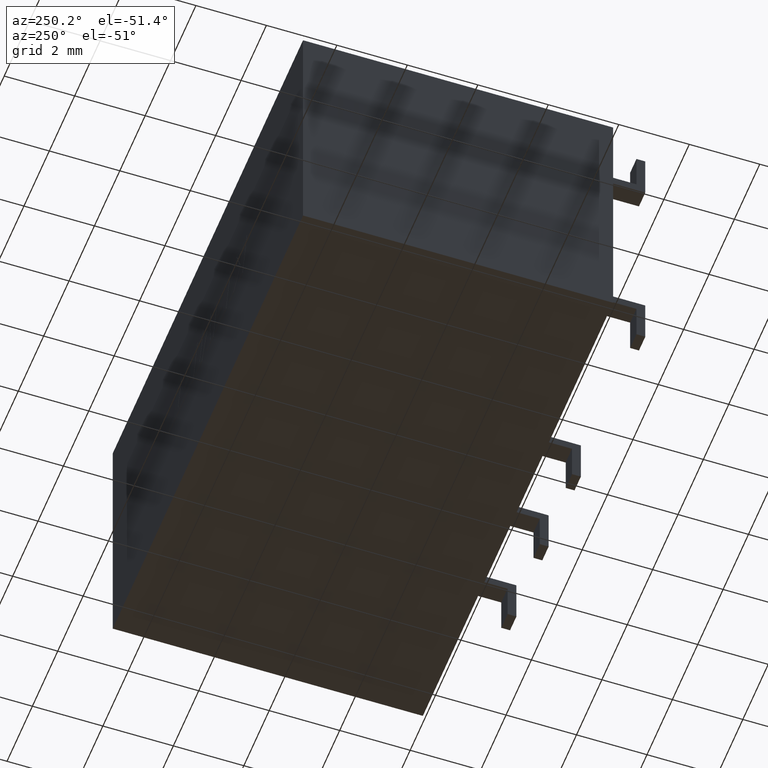
[diagram: clean part render]
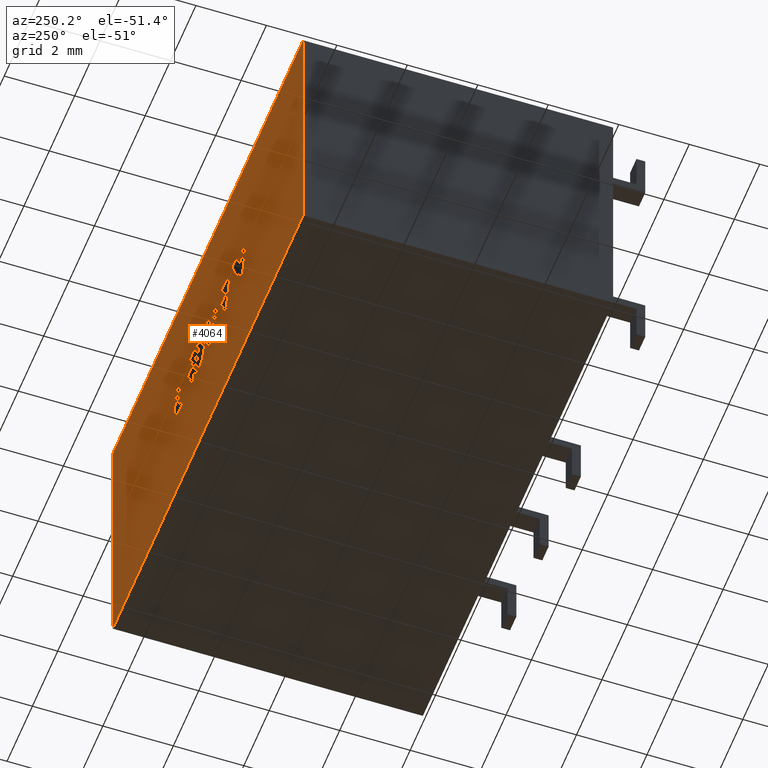
[diagram: same view with one face highlighted and labeled with its STEP entity id]
A machine part, auxiliary view. The second image highlights one B-rep face of the part: STEP entity #4064.
In plain terms, the highlighted planar face has unit normal (0, -1, 0).
Its self-contained STEP definition (entity closure, byte-faithful):
#31 = CARTESIAN_POINT ( 'NONE',  ( 8.706775999651787500, 8.800000000000000700, -3.374613370544447200 ) ) ;
#54 = EDGE_CURVE ( 'NONE', #2065, #4635, #222, .T. ) ;
#72 = DIRECTION ( 'NONE',  ( -1.000000000000000000, 0.0000000000000000000, 0.0000000000000000000 ) ) ;
#78 = EDGE_CURVE ( 'NONE', #1504, #3679, #4218, .T. ) ;
#86 = EDGE_CURVE ( 'NONE', #2978, #4818, #940, .T. ) ;
#91 = DIRECTION ( 'NONE',  ( -0.4443210308329211300, 0.0000000000000000000, 0.8958676361826953800 ) ) ;
#104 = LINE ( 'NONE', #4430, #2417 ) ;
#134 = CARTESIAN_POINT ( 'NONE',  ( 7.968587361191565900, 8.800000000000000700, -4.354115567484885900 ) ) ;
#148 = DIRECTION ( 'NONE',  ( -1.000000000000000000, -0.0000000000000000000, -0.0000000000000000000 ) ) ;
#157 = CARTESIAN_POINT ( 'NONE',  ( 15.00000000000000000, 8.800000000000000700, 0.0000000000000000000 ) ) ;
#162 = VECTOR ( 'NONE', #2710, 1000.000000000000100 ) ;
#163 = LINE ( 'NONE', #2256, #4781 ) ;
#165 = ORIENTED_EDGE ( 'NONE', *, *, #342, .F. ) ;
#188 = VERTEX_POINT ( 'NONE', #568 ) ;
#208 = ORIENTED_EDGE ( 'NONE', *, *, #1605, .F. ) ;
#215 = EDGE_CURVE ( 'NONE', #4818, #2629, #3316, .T. ) ;
#222 = LINE ( 'NONE', #31, #3178 ) ;
#226 = CARTESIAN_POINT ( 'NONE',  ( 7.539963216365854300, 8.800000000000000700, -3.489896966992324800 ) ) ;
#230 = LINE ( 'NONE', #1041, #3629 ) ;
#239 = CARTESIAN_POINT ( 'NONE',  ( 6.789761832349113600, 8.800000000000000700, -3.374569232258529000 ) ) ;
#249 = LINE ( 'NONE', #5139, #2312 ) ;
#269 = CARTESIAN_POINT ( 'NONE',  ( 0.0000000000000000000, 8.800000000000000700, 0.0000000000000000000 ) ) ;
#276 = CARTESIAN_POINT ( 'NONE',  ( 10.58682435184509500, 8.800000000000000700, -4.354115567484885900 ) ) ;
#280 = LINE ( 'NONE', #3900, #5080 ) ;
#293 = VERTEX_POINT ( 'NONE', #630 ) ;
#322 = ORIENTED_EDGE ( 'NONE', *, *, #1684, .F. ) ;
#342 = EDGE_CURVE ( 'NONE', #3692, #1717, #4514, .T. ) ;
#352 = ORIENTED_EDGE ( 'NONE', *, *, #894, .T. ) ;
#358 = EDGE_CURVE ( 'NONE', #1857, #1504, #2922, .T. ) ;
#359 = LINE ( 'NONE', #3581, #549 ) ;
#365 = VERTEX_POINT ( 'NONE', #5180 ) ;
#372 = VECTOR ( 'NONE', #5243, 1000.000000000000200 ) ;
#377 = VECTOR ( 'NONE', #3416, 1000.000000000000000 ) ;
#394 = CARTESIAN_POINT ( 'NONE',  ( 7.968587361191565900, 8.800000000000000700, -4.354115567484885900 ) ) ;
#430 = CARTESIAN_POINT ( 'NONE',  ( 4.753940212673325200, 8.800000000000000700, -3.144424836978810100 ) ) ;
#463 = ORIENTED_EDGE ( 'NONE', *, *, #1285, .T. ) ;
#471 = EDGE_CURVE ( 'NONE', #652, #4143, #5155, .T. ) ;
#481 = CARTESIAN_POINT ( 'NONE',  ( 9.843976946841056700, 8.800000000000000700, -4.120546776616391700 ) ) ;
#484 = ORIENTED_EDGE ( 'NONE', *, *, #54, .F. ) ;
#490 = VECTOR ( 'NONE', #1070, 1000.000000000000200 ) ;
#503 = LINE ( 'NONE', #1229, #4908 ) ;
#542 = VECTOR ( 'NONE', #2412, 1000.000000000000000 ) ;
#543 = VERTEX_POINT ( 'NONE', #4948 ) ;
#549 = VECTOR ( 'NONE', #4392, 1000.000000000000000 ) ;
#551 = DIRECTION ( 'NONE',  ( -0.05596501978068186400, 0.0000000000000000000, 0.9984327301130245800 ) ) ;
#568 = CARTESIAN_POINT ( 'NONE',  ( 9.476216722813125800, 8.800000000000000700, -4.122257135315609700 ) ) ;
#580 = DIRECTION ( 'NONE',  ( 0.2762437428917413600, 0.0000000000000000000, -0.9610876102172796200 ) ) ;
#592 = CARTESIAN_POINT ( 'NONE',  ( 8.644886763050072500, 8.800000000000000700, -4.354115567484885900 ) ) ;
#606 = LINE ( 'NONE', #4329, #4391 ) ;
#614 = DIRECTION ( 'NONE',  ( -1.000000000000000000, 0.0000000000000000000, 0.0000000000000000000 ) ) ;
#626 = DIRECTION ( 'NONE',  ( -0.3829140317376945600, -0.0000000000000000000, -0.9237839814038689700 ) ) ;
#630 = CARTESIAN_POINT ( 'NONE',  ( 9.276211422546655400, 8.800000000000000700, -3.374613370544447200 ) ) ;
#638 = CARTESIAN_POINT ( 'NONE',  ( 4.757603691632335900, 8.800000000000000700, -4.354115567484885900 ) ) ;
#640 = CARTESIAN_POINT ( 'NONE',  ( 7.260949101134790400, 8.800000000000000700, -3.144424836978810600 ) ) ;
#646 = CARTESIAN_POINT ( 'NONE',  ( 4.753940212673325200, 8.800000000000000700, -3.144424836978809700 ) ) ;
#652 = VERTEX_POINT ( 'NONE', #481 ) ;
#661 = CARTESIAN_POINT ( 'NONE',  ( 9.311654468621700400, 8.800000000000000700, -3.675224544226234300 ) ) ;
#707 = CARTESIAN_POINT ( 'NONE',  ( 8.154708993482012500, 8.800000000000000700, -4.226566946818449500 ) ) ;
#709 = VERTEX_POINT ( 'NONE', #592 ) ;
#715 = LINE ( 'NONE', #3590, #4617 ) ;
#732 = VECTOR ( 'NONE', #4473, 1000.000000000000100 ) ;
#734 = EDGE_CURVE ( 'NONE', #2180, #2030, #280, .T. ) ;
#751 = ORIENTED_EDGE ( 'NONE', *, *, #3725, .F. ) ;
#758 = DIRECTION ( 'NONE',  ( -1.000000000000000000, 0.0000000000000000000, 0.0000000000000000000 ) ) ;
#761 = VECTOR ( 'NONE', #4366, 1000.000000000000200 ) ;
#763 = LINE ( 'NONE', #5149, #4988 ) ;
#775 = EDGE_CURVE ( 'NONE', #3550, #3530, #799, .T. ) ;
#781 = CARTESIAN_POINT ( 'NONE',  ( 6.796768784764758200, 8.800000000000000700, -3.144424836978810600 ) ) ;
#789 = DIRECTION ( 'NONE',  ( 1.000000000000000000, -0.0000000000000000000, -0.0000000000000000000 ) ) ;
#791 = CARTESIAN_POINT ( 'NONE',  ( 8.921869238377524900, 8.800000000000000700, -4.123816688194352800 ) ) ;
#794 = CARTESIAN_POINT ( 'NONE',  ( 9.563330992554629300, 8.800000000000000700, -3.144424836978810600 ) ) ;
#799 = LINE ( 'NONE', #3031, #930 ) ;
#824 = ORIENTED_EDGE ( 'NONE', *, *, #4508, .T. ) ;
#834 = FACE_BOUND ( 'NONE', #4362, .T. ) ;
#854 = EDGE_CURVE ( 'NONE', #3530, #4114, #230, .T. ) ;
#879 = VECTOR ( 'NONE', #3812, 1000.000000000000000 ) ;
#892 = VECTOR ( 'NONE', #2695, 1000.000000000000200 ) ;
#894 = EDGE_CURVE ( 'NONE', #1311, #1740, #3308, .T. ) ;
#895 = VECTOR ( 'NONE', #4056, 1000.000000000000000 ) ;
#906 = ORIENTED_EDGE ( 'NONE', *, *, #734, .F. ) ;
#914 = DIRECTION ( 'NONE',  ( -1.000000000000000000, 0.0000000000000000000, 0.0000000000000000000 ) ) ;
#916 = EDGE_CURVE ( 'NONE', #3044, #4755, #104, .T. ) ;
#928 = EDGE_LOOP ( 'NONE', ( #2958, #4697, #2157, #2742, #3428, #3357, #2979, #3612, #1712, #4661, #906, #4893, #1176, #1687, #5311, #3471, #1704, #3133, #165, #3033, #751, #2159, #4827 ) ) ;
#929 = ORIENTED_EDGE ( 'NONE', *, *, #4367, .F. ) ;
#930 = VECTOR ( 'NONE', #1026, 1000.000000000000100 ) ;
#940 = LINE ( 'NONE', #4548, #1775 ) ;
#942 = CARTESIAN_POINT ( 'NONE',  ( 9.375529929200253000, 8.800000000000000700, -3.898814403586195800 ) ) ;
#957 = EDGE_CURVE ( 'NONE', #1445, #1381, #359, .T. ) ;
#971 = CARTESIAN_POINT ( 'NONE',  ( 6.723981068963766500, 8.800000000000000700, -3.675224544228749200 ) ) ;
#993 = CARTESIAN_POINT ( 'NONE',  ( 6.268643123160173600, 8.800000000000000700, -3.898854863686458400 ) ) ;
#1006 = EDGE_CURVE ( 'NONE', #2667, #3003, #1588, .T. ) ;
#1026 = DIRECTION ( 'NONE',  ( 0.7145695586381790600, -0.0000000000000000000, -0.6995643972270443300 ) ) ;
#1036 = DIRECTION ( 'NONE',  ( 0.0000000000000000000, 0.0000000000000000000, -1.000000000000000000 ) ) ;
#1041 = CARTESIAN_POINT ( 'NONE',  ( 5.468281639358347800, 8.800000000000000700, -4.354115567484885900 ) ) ;
#1044 = EDGE_CURVE ( 'NONE', #4635, #5107, #2807, .T. ) ;
#1057 = LINE ( 'NONE', #1312, #1584 ) ;
#1059 = LINE ( 'NONE', #3456, #3682 ) ;
#1069 = LINE ( 'NONE', #2386, #4602 ) ;
#1070 = DIRECTION ( 'NONE',  ( 0.9999999968487352000, 0.0000000000000000000, 7.938847109812788100E-005 ) ) ;
#1081 = EDGE_CURVE ( 'NONE', #3585, #3692, #1057, .T. ) ;
#1089 = EDGE_CURVE ( 'NONE', #4631, #3044, #2160, .T. ) ;
#1092 = VECTOR ( 'NONE', #1918, 1000.000000000000100 ) ;
#1115 = EDGE_CURVE ( 'NONE', #365, #3010, #1250, .T. ) ;
#1120 = CARTESIAN_POINT ( 'NONE',  ( 6.056981636408125700, 8.800000000000000700, -4.354115567484885900 ) ) ;
#1122 = VECTOR ( 'NONE', #3798, 1000.000000000000000 ) ;
#1151 = VECTOR ( 'NONE', #1169, 1000.000000000000000 ) ;
#1152 = CARTESIAN_POINT ( 'NONE',  ( 7.539963216365854300, 8.800000000000000700, -3.489896966992324800 ) ) ;
#1169 = DIRECTION ( 'NONE',  ( 0.2793947940878231400, 0.0000000000000000000, -0.9601763114327612800 ) ) ;
#1175 = CARTESIAN_POINT ( 'NONE',  ( 9.907925971234515600, 8.800000000000000700, -3.144424836978811000 ) ) ;
#1176 = ORIENTED_EDGE ( 'NONE', *, *, #3515, .F. ) ;
#1178 = VERTEX_POINT ( 'NONE', #646 ) ;
#1187 = EDGE_CURVE ( 'NONE', #4181, #2458, #606, .T. ) ;
#1188 = CARTESIAN_POINT ( 'NONE',  ( 6.334114918525966900, 8.800000000000000700, -4.123857148293979000 ) ) ;
#1192 = LINE ( 'NONE', #134, #2860 ) ;
#1218 = ORIENTED_EDGE ( 'NONE', *, *, #4843, .F. ) ;
#1229 = CARTESIAN_POINT ( 'NONE',  ( 9.476216722813125800, 8.800000000000000700, -4.122257135315608800 ) ) ;
#1232 = CARTESIAN_POINT ( 'NONE',  ( 8.296937273434075200, 8.800000000000000700, -3.144424836978810600 ) ) ;
#1250 = LINE ( 'NONE', #2581, #1122 ) ;
#1285 = EDGE_CURVE ( 'NONE', #1740, #4438, #2570, .T. ) ;
#1286 = ORIENTED_EDGE ( 'NONE', *, *, #358, .F. ) ;
#1290 = VECTOR ( 'NONE', #2802, 1000.000000000000000 ) ;
#1301 = CARTESIAN_POINT ( 'NONE',  ( 8.499149488150258900, 8.800000000000000700, -4.354115567484885900 ) ) ;
#1311 = VERTEX_POINT ( 'NONE', #5241 ) ;
#1312 = CARTESIAN_POINT ( 'NONE',  ( 7.071319977948303600, 8.800000000000000700, -4.354115567484885900 ) ) ;
#1324 = DIRECTION ( 'NONE',  ( 0.2762033010287853200, 0.0000000000000000000, -0.9610992334305559200 ) ) ;
#1332 = CARTESIAN_POINT ( 'NONE',  ( 5.102044186300700400, 8.800000000000000700, -4.354115567484885900 ) ) ;
#1346 = FACE_BOUND ( 'NONE', #928, .T. ) ;
#1365 = ORIENTED_EDGE ( 'NONE', *, *, #4488, .F. ) ;
#1381 = VERTEX_POINT ( 'NONE', #394 ) ;
#1445 = VERTEX_POINT ( 'NONE', #1301 ) ;
#1467 = CARTESIAN_POINT ( 'NONE',  ( 7.586484462749385900, 8.800000000000000700, -4.354115567484885900 ) ) ;
#1496 = EDGE_CURVE ( 'NONE', #2546, #5068, #2139, .T. ) ;
#1504 = VERTEX_POINT ( 'NONE', #2518 ) ;
#1510 = ORIENTED_EDGE ( 'NONE', *, *, #3029, .F. ) ;
#1537 = CARTESIAN_POINT ( 'NONE',  ( 6.885262377007999000, 8.800000000000000700, -4.123857148293979000 ) ) ;
#1561 = CARTESIAN_POINT ( 'NONE',  ( 8.706775999651787500, 8.800000000000000700, -3.374613370544446800 ) ) ;
#1572 = DIRECTION ( 'NONE',  ( -0.0000000000000000000, -0.0000000000000000000, 1.000000000000000000 ) ) ;
#1584 = VECTOR ( 'NONE', #4611, 999.9999999999998900 ) ;
#1588 = LINE ( 'NONE', #4045, #4221 ) ;
#1605 = EDGE_CURVE ( 'NONE', #4823, #1857, #1746, .T. ) ;
#1667 = VECTOR ( 'NONE', #4092, 1000.000000000000000 ) ;
#1684 = EDGE_CURVE ( 'NONE', #4143, #4823, #249, .T. ) ;
#1687 = ORIENTED_EDGE ( 'NONE', *, *, #5303, .F. ) ;
#1690 = CARTESIAN_POINT ( 'NONE',  ( 6.119176163806897300, 8.800000000000000700, -3.374569232258529000 ) ) ;
#1702 = CARTESIAN_POINT ( 'NONE',  ( 4.954173561733970400, 8.800000000000000700, -3.838256671071306000 ) ) ;
#1704 = ORIENTED_EDGE ( 'NONE', *, *, #4414, .F. ) ;
#1712 = ORIENTED_EDGE ( 'NONE', *, *, #4118, .F. ) ;
#1717 = VERTEX_POINT ( 'NONE', #3952 ) ;
#1740 = VERTEX_POINT ( 'NONE', #269 ) ;
#1741 = VECTOR ( 'NONE', #4979, 1000.000000000000200 ) ;
#1743 = EDGE_CURVE ( 'NONE', #5107, #4631, #3018, .T. ) ;
#1746 = LINE ( 'NONE', #5018, #4736 ) ;
#1756 = VERTEX_POINT ( 'NONE', #707 ) ;
#1775 = VECTOR ( 'NONE', #2562, 999.9999999999998900 ) ;
#1784 = CARTESIAN_POINT ( 'NONE',  ( 8.921869238377524900, 8.800000000000000700, -4.123816688194352800 ) ) ;
#1787 = LINE ( 'NONE', #2259, #372 ) ;
#1799 = ORIENTED_EDGE ( 'NONE', *, *, #854, .F. ) ;
#1801 = VECTOR ( 'NONE', #4169, 1000.000000000000000 ) ;
#1814 = CARTESIAN_POINT ( 'NONE',  ( 7.071319977948303600, 8.800000000000000700, -4.354115567484885000 ) ) ;
#1826 = CARTESIAN_POINT ( 'NONE',  ( 6.056981636408124800, 8.800000000000000700, -4.354115567484885000 ) ) ;
#1857 = VERTEX_POINT ( 'NONE', #4446 ) ;
#1866 = CARTESIAN_POINT ( 'NONE',  ( 9.210894111194017200, 8.800000000000000700, -3.144424836978810600 ) ) ;
#1872 = DIRECTION ( 'NONE',  ( -0.2764273280489753000, 0.0000000000000000000, 0.9610348236706639500 ) ) ;
#1877 = DIRECTION ( 'NONE',  ( -1.000000000000000000, -0.0000000000000000000, -0.0000000000000000000 ) ) ;
#1907 = VECTOR ( 'NONE', #4162, 1000.000000000000000 ) ;
#1918 = DIRECTION ( 'NONE',  ( 0.2746918797667299300, 0.0000000000000000000, -0.9615323037684279100 ) ) ;
#1937 = VERTEX_POINT ( 'NONE', #1702 ) ;
#1970 = VERTEX_POINT ( 'NONE', #4539 ) ;
#1989 = VERTEX_POINT ( 'NONE', #4945 ) ;
#2016 = CARTESIAN_POINT ( 'NONE',  ( 8.151354483517396300, 8.800000000000000700, -3.144424836978810600 ) ) ;
#2030 = VERTEX_POINT ( 'NONE', #1826 ) ;
#2052 = ORIENTED_EDGE ( 'NONE', *, *, #471, .F. ) ;
#2054 = CARTESIAN_POINT ( 'NONE',  ( 7.843953369709644200, 8.800000000000000700, -3.144424836978810600 ) ) ;
#2059 = EDGE_CURVE ( 'NONE', #2030, #3101, #4705, .T. ) ;
#2065 = VERTEX_POINT ( 'NONE', #1561 ) ;
#2139 = LINE ( 'NONE', #4563, #2444 ) ;
#2155 = CARTESIAN_POINT ( 'NONE',  ( 10.51969316372213300, 8.800000000000000700, -4.120520482980314400 ) ) ;
#2157 = ORIENTED_EDGE ( 'NONE', *, *, #3604, .F. ) ;
#2159 = ORIENTED_EDGE ( 'NONE', *, *, #4549, .F. ) ;
#2160 = LINE ( 'NONE', #942, #2538 ) ;
#2180 = VERTEX_POINT ( 'NONE', #4453 ) ;
#2183 = EDGE_CURVE ( 'NONE', #3317, #1445, #2681, .T. ) ;
#2185 = VECTOR ( 'NONE', #3248, 1000.000000000000000 ) ;
#2197 = EDGE_CURVE ( 'NONE', #1970, #1178, #2819, .T. ) ;
#2240 = FACE_BOUND ( 'NONE', #3335, .T. ) ;
#2256 = CARTESIAN_POINT ( 'NONE',  ( 7.843953369709644200, 8.800000000000000700, -3.144424836978810600 ) ) ;
#2259 = CARTESIAN_POINT ( 'NONE',  ( 6.723981068963766500, 8.800000000000000700, -3.675224544228749700 ) ) ;
#2271 = VERTEX_POINT ( 'NONE', #2054 ) ;
#2279 = ORIENTED_EDGE ( 'NONE', *, *, #3825, .F. ) ;
#2282 = CARTESIAN_POINT ( 'NONE',  ( 8.154708993482012500, 8.800000000000000700, -4.226566946818449500 ) ) ;
#2293 = EDGE_CURVE ( 'NONE', #3003, #2435, #2675, .T. ) ;
#2312 = VECTOR ( 'NONE', #4340, 1000.000000000000000 ) ;
#2335 = ORIENTED_EDGE ( 'NONE', *, *, #2832, .F. ) ;
#2337 = CARTESIAN_POINT ( 'NONE',  ( 0.0000000000000000000, 8.800000000000000700, 0.0000000000000000000 ) ) ;
#2354 = CARTESIAN_POINT ( 'NONE',  ( 4.409959492820113300, 8.800000000000000700, -3.144424836978810100 ) ) ;
#2361 = LINE ( 'NONE', #1537, #892 ) ;
#2378 = CARTESIAN_POINT ( 'NONE',  ( 6.787856529543725000, 8.800000000000000700, -3.898854863686458800 ) ) ;
#2384 = VECTOR ( 'NONE', #4344, 1000.000000000000100 ) ;
#2386 = CARTESIAN_POINT ( 'NONE',  ( 9.542909678477567300, 8.800000000000000700, -4.354115567484885900 ) ) ;
#2388 = VECTOR ( 'NONE', #148, 1000.000000000000000 ) ;
#2412 = DIRECTION ( 'NONE',  ( -0.7059037656364862700, -0.0000000000000000000, 0.7083077534943611500 ) ) ;
#2417 = VECTOR ( 'NONE', #3653, 1000.000000000000200 ) ;
#2435 = VERTEX_POINT ( 'NONE', #2682 ) ;
#2444 = VECTOR ( 'NONE', #914, 1000.000000000000000 ) ;
#2456 = EDGE_CURVE ( 'NONE', #2435, #3550, #1059, .T. ) ;
#2458 = VERTEX_POINT ( 'NONE', #1866 ) ;
#2518 = CARTESIAN_POINT ( 'NONE',  ( 10.51969316372213300, 8.800000000000000700, -4.120520482980314400 ) ) ;
#2525 = EDGE_CURVE ( 'NONE', #4114, #1937, #3807, .T. ) ;
#2537 = ORIENTED_EDGE ( 'NONE', *, *, #1115, .F. ) ;
#2538 = VECTOR ( 'NONE', #72, 1000.000000000000000 ) ;
#2546 = VERTEX_POINT ( 'NONE', #2378 ) ;
#2560 = LINE ( 'NONE', #781, #2185 ) ;
#2562 = DIRECTION ( 'NONE',  ( 0.2759782365590802700, 0.0000000000000000000, -0.9611638845408937400 ) ) ;
#2565 = DIRECTION ( 'NONE',  ( 0.2755520632520555600, -0.0000000000000000000, -0.9612861490927324700 ) ) ;
#2570 = LINE ( 'NONE', #3216, #1290 ) ;
#2581 = CARTESIAN_POINT ( 'NONE',  ( 4.757603691632335900, 8.800000000000000700, -4.354115567484885900 ) ) ;
#2622 = CARTESIAN_POINT ( 'NONE',  ( 7.583441831593136200, 8.800000000000000700, -3.144424836978810100 ) ) ;
#2623 = VECTOR ( 'NONE', #3030, 1000.000000000000000 ) ;
#2629 = VERTEX_POINT ( 'NONE', #2794 ) ;
#2635 = CARTESIAN_POINT ( 'NONE',  ( 5.205850084698665700, 8.800000000000000700, -3.144424836978810100 ) ) ;
#2645 = EDGE_LOOP ( 'NONE', ( #352, #463, #824, #3421 ) ) ;
#2667 = VERTEX_POINT ( 'NONE', #4067 ) ;
#2668 = DIRECTION ( 'NONE',  ( 0.05375259206908399000, 0.0000000000000000000, -0.9985542843760947300 ) ) ;
#2675 = LINE ( 'NONE', #3231, #4406 ) ;
#2681 = LINE ( 'NONE', #2016, #895 ) ;
#2682 = CARTESIAN_POINT ( 'NONE',  ( 5.573919276750199700, 8.800000000000000700, -3.144424836978810100 ) ) ;
#2691 = CARTESIAN_POINT ( 'NONE',  ( 5.301659597375603100, 8.800000000000000700, -3.801254072112965500 ) ) ;
#2695 = DIRECTION ( 'NONE',  ( 0.2732148821745930000, 0.0000000000000000000, -0.9619530280415583600 ) ) ;
#2701 = CARTESIAN_POINT ( 'NONE',  ( 10.18849100532379900, 8.800000000000000700, -4.120546776613377200 ) ) ;
#2708 = EDGE_CURVE ( 'NONE', #1717, #543, #5206, .T. ) ;
#2710 = DIRECTION ( 'NONE',  ( -0.2762033010252007400, -0.0000000000000000000, 0.9610992334315861000 ) ) ;
#2742 = ORIENTED_EDGE ( 'NONE', *, *, #3132, .F. ) ;
#2751 = VERTEX_POINT ( 'NONE', #1188 ) ;
#2787 = CARTESIAN_POINT ( 'NONE',  ( 9.375529929200253000, 8.800000000000000700, -3.898814403586195800 ) ) ;
#2794 = CARTESIAN_POINT ( 'NONE',  ( 7.260949101134790400, 8.800000000000000700, -3.144424836978810600 ) ) ;
#2801 = ORIENTED_EDGE ( 'NONE', *, *, #1006, .F. ) ;
#2802 = DIRECTION ( 'NONE',  ( 1.000000000000000000, 0.0000000000000000000, 0.0000000000000000000 ) ) ;
#2807 = LINE ( 'NONE', #2859, #4835 ) ;
#2814 = CARTESIAN_POINT ( 'NONE',  ( 4.954173561733969500, 8.800000000000000700, -3.838256671071306000 ) ) ;
#2819 = LINE ( 'NONE', #430, #1667 ) ;
#2822 = VECTOR ( 'NONE', #5076, 999.9999999999998900 ) ;
#2832 = EDGE_CURVE ( 'NONE', #293, #2065, #4334, .T. ) ;
#2859 = CARTESIAN_POINT ( 'NONE',  ( 8.792595546249630800, 8.800000000000000700, -3.675224544226234300 ) ) ;
#2860 = VECTOR ( 'NONE', #91, 1000.000000000000200 ) ;
#2875 = ORIENTED_EDGE ( 'NONE', *, *, #2293, .F. ) ;
#2876 = EDGE_CURVE ( 'NONE', #1381, #5312, #1192, .T. ) ;
#2881 = VECTOR ( 'NONE', #1036, 1000.000000000000000 ) ;
#2889 = CARTESIAN_POINT ( 'NONE',  ( 9.210894111194017200, 8.800000000000000700, -3.144424836978811000 ) ) ;
#2921 = ORIENTED_EDGE ( 'NONE', *, *, #916, .F. ) ;
#2922 = LINE ( 'NONE', #2701, #490 ) ;
#2945 = DIRECTION ( 'NONE',  ( 0.2745159998572672700, 0.0000000000000000000, -0.9615825319869141200 ) ) ;
#2958 = ORIENTED_EDGE ( 'NONE', *, *, #957, .F. ) ;
#2978 = VERTEX_POINT ( 'NONE', #4689 ) ;
#2979 = ORIENTED_EDGE ( 'NONE', *, *, #215, .F. ) ;
#2999 = CARTESIAN_POINT ( 'NONE',  ( 6.204841226395180000, 8.800000000000000700, -3.675224544228749700 ) ) ;
#3003 = VERTEX_POINT ( 'NONE', #2635 ) ;
#3010 = VERTEX_POINT ( 'NONE', #638 ) ;
#3018 = LINE ( 'NONE', #661, #1092 ) ;
#3029 = EDGE_CURVE ( 'NONE', #3010, #1970, #3427, .T. ) ;
#3030 = DIRECTION ( 'NONE',  ( 1.000000000000000000, 0.0000000000000000000, 0.0000000000000000000 ) ) ;
#3031 = CARTESIAN_POINT ( 'NONE',  ( 5.866379580699370600, 8.800000000000000700, -4.354115567484885900 ) ) ;
#3033 = ORIENTED_EDGE ( 'NONE', *, *, #1081, .F. ) ;
#3037 = CARTESIAN_POINT ( 'NONE',  ( 7.321315567737342700, 8.800000000000000700, -4.221380697862242600 ) ) ;
#3044 = VERTEX_POINT ( 'NONE', #3091 ) ;
#3045 = ORIENTED_EDGE ( 'NONE', *, *, #3799, .F. ) ;
#3058 = CARTESIAN_POINT ( 'NONE',  ( 9.311654468621700400, 8.800000000000000700, -3.675224544226234300 ) ) ;
#3084 = CARTESIAN_POINT ( 'NONE',  ( 7.583441831593136200, 8.800000000000000700, -3.144424836978810600 ) ) ;
#3091 = CARTESIAN_POINT ( 'NONE',  ( 8.856397443013156200, 8.800000000000000700, -3.898814403586194900 ) ) ;
#3093 = EDGE_CURVE ( 'NONE', #1989, #2180, #2361, .T. ) ;
#3101 = VERTEX_POINT ( 'NONE', #3117 ) ;
#3113 = LINE ( 'NONE', #4621, #879 ) ;
#3117 = CARTESIAN_POINT ( 'NONE',  ( 5.708881340971506000, 8.800000000000000700, -3.144424836978810600 ) ) ;
#3121 = ORIENTED_EDGE ( 'NONE', *, *, #4741, .F. ) ;
#3126 = VECTOR ( 'NONE', #2668, 1000.000000000000000 ) ;
#3127 = DIRECTION ( 'NONE',  ( 1.000000000000000000, 0.0000000000000000000, -4.745091355267168600E-016 ) ) ;
#3132 = EDGE_CURVE ( 'NONE', #1756, #2271, #4918, .T. ) ;
#3133 = ORIENTED_EDGE ( 'NONE', *, *, #2708, .F. ) ;
#3172 = DIRECTION ( 'NONE',  ( 0.0000000000000000000, -1.000000000000000000, 0.0000000000000000000 ) ) ;
#3178 = VECTOR ( 'NONE', #2945, 1000.000000000000100 ) ;
#3177 = AXIS2_PLACEMENT_3D ( 'NONE', #2337, #3172, #5193 ) ;
#3192 = PLANE ( 'NONE',  #3177 ) ;
#3212 = CARTESIAN_POINT ( 'NONE',  ( 6.268643123160173600, 8.800000000000000700, -3.898854863686458800 ) ) ;
#3216 = CARTESIAN_POINT ( 'NONE',  ( 0.0000000000000000000, 8.800000000000000700, 0.0000000000000000000 ) ) ;
#3231 = CARTESIAN_POINT ( 'NONE',  ( 5.573919276750198800, 8.800000000000000700, -3.144424836978810100 ) ) ;
#3240 = VECTOR ( 'NONE', #1324, 1000.000000000000100 ) ;
#3248 = DIRECTION ( 'NONE',  ( 1.000000000000000000, 0.0000000000000000000, 0.0000000000000000000 ) ) ;
#3249 = ORIENTED_EDGE ( 'NONE', *, *, #4513, .F. ) ;
#3259 = CARTESIAN_POINT ( 'NONE',  ( 7.321315567737343600, 8.800000000000000700, -4.221380697862242600 ) ) ;
#3308 = LINE ( 'NONE', #3613, #4096 ) ;
#3313 = CARTESIAN_POINT ( 'NONE',  ( 4.942201049871806100, 8.800000000000000700, -3.801254072112956200 ) ) ;
#3316 = LINE ( 'NONE', #3037, #4336 ) ;
#3317 = VERTEX_POINT ( 'NONE', #3334 ) ;
#3334 = CARTESIAN_POINT ( 'NONE',  ( 8.151354483517396300, 8.800000000000000700, -3.144424836978810600 ) ) ;
#3335 = EDGE_LOOP ( 'NONE', ( #1510, #2537, #1365, #3527, #1799, #4857, #4521, #2875, #2801, #3045, #3452 ) ) ;
#3339 = ORIENTED_EDGE ( 'NONE', *, *, #1044, .F. ) ;
#3356 = CARTESIAN_POINT ( 'NONE',  ( 9.276211422546655400, 8.800000000000000700, -3.374613370544447200 ) ) ;
#3357 = ORIENTED_EDGE ( 'NONE', *, *, #3974, .F. ) ;
#3416 = DIRECTION ( 'NONE',  ( 1.000000000000000000, 0.0000000000000000000, 0.0000000000000000000 ) ) ;
#3420 = VECTOR ( 'NONE', #614, 1000.000000000000000 ) ;
#3421 = ORIENTED_EDGE ( 'NONE', *, *, #5050, .T. ) ;
#3427 = LINE ( 'NONE', #2354, #162 ) ;
#3428 = ORIENTED_EDGE ( 'NONE', *, *, #5159, .F. ) ;
#3452 = ORIENTED_EDGE ( 'NONE', *, *, #2197, .F. ) ;
#3455 = DIRECTION ( 'NONE',  ( -1.000000000000000000, 0.0000000000000000000, 0.0000000000000000000 ) ) ;
#3456 = CARTESIAN_POINT ( 'NONE',  ( 5.301659597375603100, 8.800000000000000700, -3.801254072112964600 ) ) ;
#3458 = CARTESIAN_POINT ( 'NONE',  ( 0.0000000000000000000, 8.800000000000000700, -7.500000000000000000 ) ) ;
#3471 = ORIENTED_EDGE ( 'NONE', *, *, #4591, .F. ) ;
#3486 = VERTEX_POINT ( 'NONE', #4240 ) ;
#3515 = EDGE_CURVE ( 'NONE', #2751, #1989, #3113, .T. ) ;
#3527 = ORIENTED_EDGE ( 'NONE', *, *, #2525, .F. ) ;
#3530 = VERTEX_POINT ( 'NONE', #4287 ) ;
#3550 = VERTEX_POINT ( 'NONE', #2691 ) ;
#3581 = CARTESIAN_POINT ( 'NONE',  ( 8.499149488150258900, 8.800000000000000700, -4.354115567484885900 ) ) ;
#3585 = VERTEX_POINT ( 'NONE', #1814 ) ;
#3586 = DIRECTION ( 'NONE',  ( -0.2763173343570099500, 0.0000000000000000000, 0.9610664548998869600 ) ) ;
#3590 = CARTESIAN_POINT ( 'NONE',  ( 7.586484462749385900, 8.800000000000000700, -4.354115567484885900 ) ) ;
#3604 = EDGE_CURVE ( 'NONE', #2271, #3317, #163, .T. ) ;
#3612 = ORIENTED_EDGE ( 'NONE', *, *, #86, .F. ) ;
#3613 = CARTESIAN_POINT ( 'NONE',  ( 0.0000000000000000000, 8.800000000000000700, 0.0000000000000000000 ) ) ;
#3629 = VECTOR ( 'NONE', #1877, 1000.000000000000000 ) ;
#3653 = DIRECTION ( 'NONE',  ( 0.2793947940814910400, 0.0000000000000000000, -0.9601763114346036900 ) ) ;
#3679 = VERTEX_POINT ( 'NONE', #276 ) ;
#3682 = VECTOR ( 'NONE', #626, 1000.000000000000100 ) ;
#3685 = VECTOR ( 'NONE', #3586, 1000.000000000000000 ) ;
#3692 = VERTEX_POINT ( 'NONE', #5216 ) ;
#3720 = LINE ( 'NONE', #3212, #1151 ) ;
#3725 = EDGE_CURVE ( 'NONE', #4505, #3585, #715, .T. ) ;
#3784 = ORIENTED_EDGE ( 'NONE', *, *, #1743, .F. ) ;
#3798 = DIRECTION ( 'NONE',  ( -1.000000000000000000, -0.0000000000000000000, -0.0000000000000000000 ) ) ;
#3799 = EDGE_CURVE ( 'NONE', #1178, #2667, #4801, .T. ) ;
#3807 = LINE ( 'NONE', #2814, #542 ) ;
#3810 = ORIENTED_EDGE ( 'NONE', *, *, #1089, .F. ) ;
#3812 = DIRECTION ( 'NONE',  ( 1.000000000000000000, 0.0000000000000000000, 0.0000000000000000000 ) ) ;
#3825 = EDGE_CURVE ( 'NONE', #2458, #293, #5117, .T. ) ;
#3883 = VECTOR ( 'NONE', #3980, 1000.000000000000000 ) ;
#3899 = LINE ( 'NONE', #1332, #4288 ) ;
#3900 = CARTESIAN_POINT ( 'NONE',  ( 6.950660608558899300, 8.800000000000000700, -4.354115567484885900 ) ) ;
#3904 = LINE ( 'NONE', #1784, #2822 ) ;
#3919 = LINE ( 'NONE', #3084, #2384 ) ;
#3925 = DIRECTION ( 'NONE',  ( 1.000000000000000000, 0.0000000000000000000, 0.0000000000000000000 ) ) ;
#3944 = VERTEX_POINT ( 'NONE', #2622 ) ;
#3952 = CARTESIAN_POINT ( 'NONE',  ( 6.119176163806898200, 8.800000000000000700, -3.374569232258528600 ) ) ;
#3974 = EDGE_CURVE ( 'NONE', #2629, #3944, #4615, .T. ) ;
#3980 = DIRECTION ( 'NONE',  ( -0.2765379750249952800, 0.0000000000000000000, 0.9610029908221280300 ) ) ;
#4006 = DIRECTION ( 'NONE',  ( 0.3725077383644731000, -0.0000000000000000000, 0.9280290862136731900 ) ) ;
#4045 = CARTESIAN_POINT ( 'NONE',  ( 5.205850084698665700, 8.800000000000000700, -3.144424836978810100 ) ) ;
#4056 = DIRECTION ( 'NONE',  ( 0.2763139702539109100, 0.0000000000000000000, -0.9610674221107075000 ) ) ;
#4064 = ADVANCED_FACE ( 'NONE', ( #1346, #4351, #2240, #834 ), #3192, .F. ) ;
#4067 = CARTESIAN_POINT ( 'NONE',  ( 4.942201049871807000, 8.800000000000000700, -3.801254072112956600 ) ) ;
#4092 = DIRECTION ( 'NONE',  ( 1.000000000000000000, -0.0000000000000000000, -0.0000000000000000000 ) ) ;
#4096 = VECTOR ( 'NONE', #1572, 1000.000000000000000 ) ;
#4114 = VERTEX_POINT ( 'NONE', #4368 ) ;
#4118 = EDGE_CURVE ( 'NONE', #3101, #2978, #2560, .T. ) ;
#4143 = VERTEX_POINT ( 'NONE', #794 ) ;
#4162 = DIRECTION ( 'NONE',  ( -1.000000000000000000, 0.0000000000000000000, 0.0000000000000000000 ) ) ;
#4169 = DIRECTION ( 'NONE',  ( 0.2729786930695544100, 0.0000000000000000000, -0.9620200793798631100 ) ) ;
#4181 = VERTEX_POINT ( 'NONE', #1232 ) ;
#4210 = DIRECTION ( 'NONE',  ( 1.000000000000000000, 0.0000000000000000000, 0.0000000000000000000 ) ) ;
#4218 = LINE ( 'NONE', #2155, #3240 ) ;
#4221 = VECTOR ( 'NONE', #4006, 1000.000000000000100 ) ;
#4240 = CARTESIAN_POINT ( 'NONE',  ( 15.00000000000000000, 8.800000000000000700, -7.500000000000000000 ) ) ;
#4287 = CARTESIAN_POINT ( 'NONE',  ( 5.866379580699370600, 8.800000000000000700, -4.354115567484885900 ) ) ;
#4288 = VECTOR ( 'NONE', #2565, 1000.000000000000100 ) ;
#4307 = LINE ( 'NONE', #3458, #2388 ) ;
#4329 = CARTESIAN_POINT ( 'NONE',  ( 8.296937273434075200, 8.800000000000000700, -3.144424836978810600 ) ) ;
#4334 = LINE ( 'NONE', #3356, #1907 ) ;
#4336 = VECTOR ( 'NONE', #551, 1000.000000000000200 ) ;
#4340 = DIRECTION ( 'NONE',  ( 1.000000000000000000, 0.0000000000000000000, 0.0000000000000000000 ) ) ;
#4344 = DIRECTION ( 'NONE',  ( 0.4668459304955212600, 0.0000000000000000000, -0.8843386665637610300 ) ) ;
#4351 = FACE_OUTER_BOUND ( 'NONE', #2645, .T. ) ;
#4362 = EDGE_LOOP ( 'NONE', ( #929, #2921, #3810, #3784, #3339, #484, #2335, #2279, #5097, #3249, #3121, #4803, #1286, #208, #322, #2052, #1218 ) ) ;
#4366 = DIRECTION ( 'NONE',  ( -0.2760118818968536100, 0.0000000000000000000, 0.9611542233438695700 ) ) ;
#4367 = EDGE_CURVE ( 'NONE', #4755, #188, #3904, .T. ) ;
#4368 = CARTESIAN_POINT ( 'NONE',  ( 5.468281639358347800, 8.800000000000000700, -4.354115567484885900 ) ) ;
#4391 = VECTOR ( 'NONE', #3127, 1000.000000000000000 ) ;
#4392 = DIRECTION ( 'NONE',  ( -1.000000000000000000, 0.0000000000000000000, 0.0000000000000000000 ) ) ;
#4406 = VECTOR ( 'NONE', #789, 1000.000000000000000 ) ;
#4409 = LINE ( 'NONE', #4700, #2881 ) ;
#4414 = EDGE_CURVE ( 'NONE', #543, #4422, #4848, .T. ) ;
#4416 = CARTESIAN_POINT ( 'NONE',  ( 9.843976946841055000, 8.800000000000000700, -4.120546776616391700 ) ) ;
#4422 = VERTEX_POINT ( 'NONE', #971 ) ;
#4430 = CARTESIAN_POINT ( 'NONE',  ( 8.856397443013156200, 8.800000000000000700, -3.898814403586195800 ) ) ;
#4438 = VERTEX_POINT ( 'NONE', #157 ) ;
#4446 = CARTESIAN_POINT ( 'NONE',  ( 10.18849100532379900, 8.800000000000000700, -4.120546776613377200 ) ) ;
#4453 = CARTESIAN_POINT ( 'NONE',  ( 6.950660608558899300, 8.800000000000000700, -4.354115567484885900 ) ) ;
#4473 = DIRECTION ( 'NONE',  ( 0.2740217765954066600, 0.0000000000000000000, -0.9617234872620595800 ) ) ;
#4480 = DIRECTION ( 'NONE',  ( 0.9999891854650020400, 0.0000000000000000000, 0.004650693823681484100 ) ) ;
#4488 = EDGE_CURVE ( 'NONE', #1937, #365, #3899, .T. ) ;
#4505 = VERTEX_POINT ( 'NONE', #1467 ) ;
#4508 = EDGE_CURVE ( 'NONE', #4438, #3486, #4409, .T. ) ;
#4513 = EDGE_CURVE ( 'NONE', #709, #4181, #763, .T. ) ;
#4514 = LINE ( 'NONE', #239, #3420 ) ;
#4521 = ORIENTED_EDGE ( 'NONE', *, *, #2456, .F. ) ;
#4539 = CARTESIAN_POINT ( 'NONE',  ( 4.409959492820113300, 8.800000000000000700, -3.144424836978810100 ) ) ;
#4548 = CARTESIAN_POINT ( 'NONE',  ( 7.012090071316882800, 8.800000000000000700, -3.144424836978810600 ) ) ;
#4549 = EDGE_CURVE ( 'NONE', #5312, #4505, #4845, .T. ) ;
#4563 = CARTESIAN_POINT ( 'NONE',  ( 6.787856529543725000, 8.800000000000000700, -3.898854863686458800 ) ) ;
#4591 = EDGE_CURVE ( 'NONE', #4422, #2546, #1787, .T. ) ;
#4602 = VECTOR ( 'NONE', #758, 1000.000000000000000 ) ;
#4611 = DIRECTION ( 'NONE',  ( -0.2762517575166134600, 0.0000000000000000000, 0.9610853065513915700 ) ) ;
#4615 = LINE ( 'NONE', #640, #2623 ) ;
#4617 = VECTOR ( 'NONE', #4751, 1000.000000000000000 ) ;
#4621 = CARTESIAN_POINT ( 'NONE',  ( 6.334114918525966900, 8.800000000000000700, -4.123857148293979000 ) ) ;
#4631 = VERTEX_POINT ( 'NONE', #2787 ) ;
#4635 = VERTEX_POINT ( 'NONE', #5201 ) ;
#4661 = ORIENTED_EDGE ( 'NONE', *, *, #2059, .F. ) ;
#4689 = CARTESIAN_POINT ( 'NONE',  ( 7.012090071316882800, 8.800000000000000700, -3.144424836978810600 ) ) ;
#4697 = ORIENTED_EDGE ( 'NONE', *, *, #2183, .F. ) ;
#4700 = CARTESIAN_POINT ( 'NONE',  ( 15.00000000000000000, 8.800000000000000700, 0.0000000000000000000 ) ) ;
#4705 = LINE ( 'NONE', #1120, #3883 ) ;
#4736 = VECTOR ( 'NONE', #580, 1000.000000000000100 ) ;
#4741 = EDGE_CURVE ( 'NONE', #3679, #709, #1069, .T. ) ;
#4751 = DIRECTION ( 'NONE',  ( -1.000000000000000000, 0.0000000000000000000, 0.0000000000000000000 ) ) ;
#4755 = VERTEX_POINT ( 'NONE', #791 ) ;
#4781 = VECTOR ( 'NONE', #3925, 1000.000000000000000 ) ;
#4801 = LINE ( 'NONE', #3313, #1741 ) ;
#4803 = ORIENTED_EDGE ( 'NONE', *, *, #78, .F. ) ;
#4818 = VERTEX_POINT ( 'NONE', #3259 ) ;
#4823 = VERTEX_POINT ( 'NONE', #1175 ) ;
#4827 = ORIENTED_EDGE ( 'NONE', *, *, #2876, .F. ) ;
#4835 = VECTOR ( 'NONE', #4210, 1000.000000000000000 ) ;
#4843 = EDGE_CURVE ( 'NONE', #188, #652, #503, .T. ) ;
#4845 = LINE ( 'NONE', #226, #3126 ) ;
#4848 = LINE ( 'NONE', #2999, #377 ) ;
#4857 = ORIENTED_EDGE ( 'NONE', *, *, #775, .F. ) ;
#4893 = ORIENTED_EDGE ( 'NONE', *, *, #3093, .F. ) ;
#4908 = VECTOR ( 'NONE', #4480, 1000.000000000000200 ) ;
#4918 = LINE ( 'NONE', #2282, #761 ) ;
#4945 = CARTESIAN_POINT ( 'NONE',  ( 6.885262377007999000, 8.800000000000000700, -4.123857148293979000 ) ) ;
#4948 = CARTESIAN_POINT ( 'NONE',  ( 6.204841226395180000, 8.800000000000000700, -3.675224544228749700 ) ) ;
#4979 = DIRECTION ( 'NONE',  ( 0.2755265765475188900, -0.0000000000000000000, -0.9612934544747530100 ) ) ;
#4988 = VECTOR ( 'NONE', #1872, 1000.000000000000000 ) ;
#5018 = CARTESIAN_POINT ( 'NONE',  ( 9.907925971234515600, 8.800000000000000700, -3.144424836978810600 ) ) ;
#5050 = EDGE_CURVE ( 'NONE', #3486, #1311, #4307, .T. ) ;
#5068 = VERTEX_POINT ( 'NONE', #993 ) ;
#5076 = DIRECTION ( 'NONE',  ( 0.9999960426590096500, 0.0000000000000000000, 0.002813301676023204700 ) ) ;
#5080 = VECTOR ( 'NONE', #3455, 1000.000000000000000 ) ;
#5097 = ORIENTED_EDGE ( 'NONE', *, *, #1187, .F. ) ;
#5107 = VERTEX_POINT ( 'NONE', #3058 ) ;
#5117 = LINE ( 'NONE', #2889, #1801 ) ;
#5139 = CARTESIAN_POINT ( 'NONE',  ( 9.563330992554629300, 8.800000000000000700, -3.144424836978810600 ) ) ;
#5149 = CARTESIAN_POINT ( 'NONE',  ( 8.644886763050072500, 8.800000000000000700, -4.354115567484885900 ) ) ;
#5155 = LINE ( 'NONE', #4416, #3685 ) ;
#5159 = EDGE_CURVE ( 'NONE', #3944, #1756, #3919, .T. ) ;
#5180 = CARTESIAN_POINT ( 'NONE',  ( 5.102044186300700400, 8.800000000000000700, -4.354115567484885900 ) ) ;
#5193 = DIRECTION ( 'NONE',  ( 0.0000000000000000000, -0.0000000000000000000, -1.000000000000000000 ) ) ;
#5201 = CARTESIAN_POINT ( 'NONE',  ( 8.792595546249630800, 8.800000000000000700, -3.675224544226234300 ) ) ;
#5206 = LINE ( 'NONE', #1690, #732 ) ;
#5216 = CARTESIAN_POINT ( 'NONE',  ( 6.789761832349113600, 8.800000000000000700, -3.374569232258529000 ) ) ;
#5241 = CARTESIAN_POINT ( 'NONE',  ( 0.0000000000000000000, 8.800000000000000700, -7.500000000000000000 ) ) ;
#5243 = DIRECTION ( 'NONE',  ( 0.2746459304916855600, 0.0000000000000000000, -0.9615454294334491200 ) ) ;
#5303 = EDGE_CURVE ( 'NONE', #5068, #2751, #3720, .T. ) ;
#5311 = ORIENTED_EDGE ( 'NONE', *, *, #1496, .F. ) ;
#5312 = VERTEX_POINT ( 'NONE', #1152 ) ;